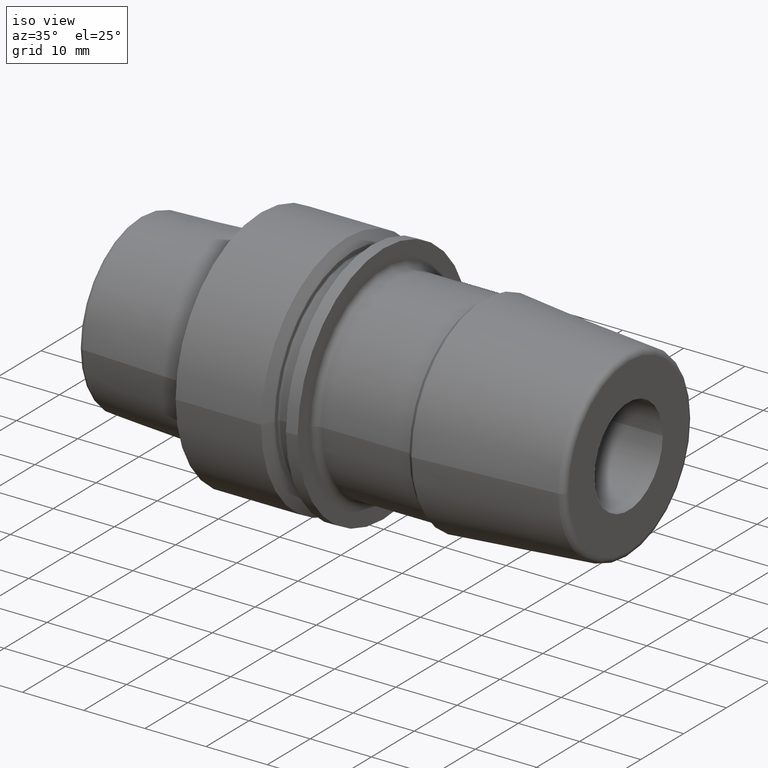
[diagram: clean part render]
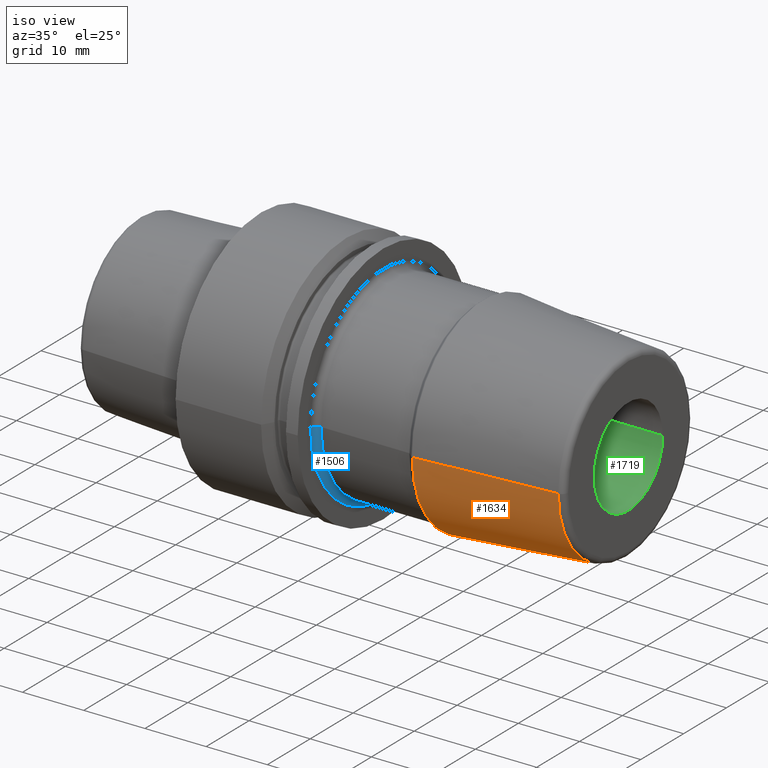
[diagram: same view with three faces highlighted in distinct colors, each labeled with its STEP entity id]
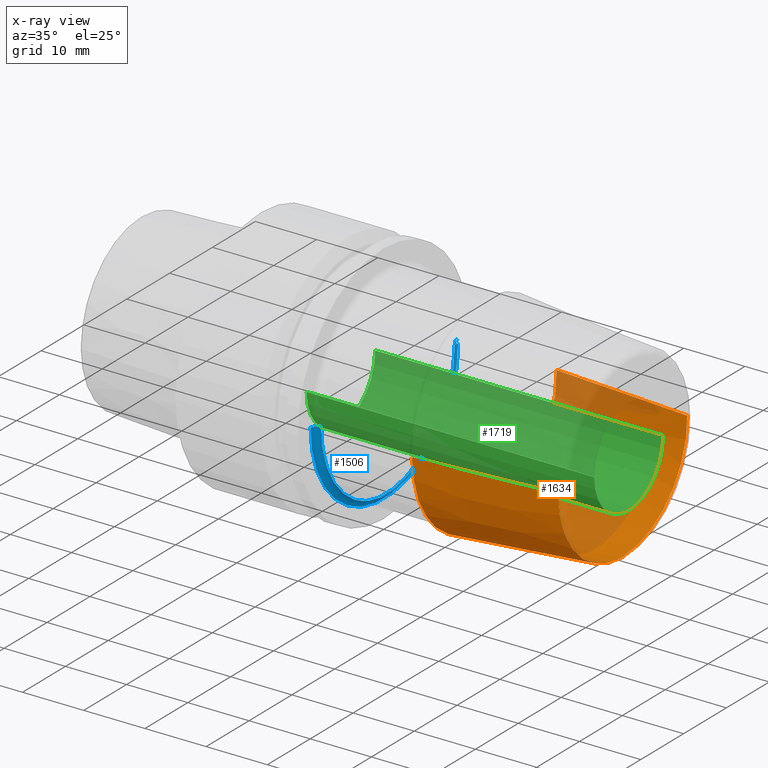
[diagram: x-ray of the same camera — body ghosted, the three highlighted faces saturated]
A machine part, iso view with three faces highlighted in distinct colors.
The next image is the same camera in x-ray (body ghosted, the three faces saturated) — at least one of them is partly hidden behind the body in this view.
Their STEP definitions:

[orange] entity #1634 — the highlighted conical surface has half-angle 4.5 deg.
#542=CARTESIAN_POINT('',(5.907845909573E1,0.E0,0.E0));
#543=DIRECTION('',(-1.E0,0.E0,0.E0));
#544=DIRECTION('',(0.E0,1.E0,0.E0));
#545=AXIS2_PLACEMENT_3D('',#542,#543,#544);
#547=DIRECTION('',(-9.969173337331E-1,7.845909572785E-2,3.844125829266E-13));
#548=VECTOR('',#547,2.269642981535E1);
#549=CARTESIAN_POINT('',(5.907845909573E1,1.507252684207E1,
-6.649541496130E-13));
#550=LINE('',#549,#548);
#551=CARTESIAN_POINT('',(3.645199479895E1,0.E0,0.E0));
#552=DIRECTION('',(-1.E0,0.E0,0.E0));
#553=DIRECTION('',(0.E0,1.E0,0.E0));
#554=AXIS2_PLACEMENT_3D('',#551,#552,#553);
#556=DIRECTION('',(-9.969173337331E-1,-7.845909572785E-2,-3.844076476141E-13));
#557=VECTOR('',#556,2.269642981535E1);
#558=CARTESIAN_POINT('',(5.907845909573E1,-1.507252684207E1,
6.644926865692E-13));
#559=LINE('',#558,#557);
#744=CARTESIAN_POINT('',(5.907845909573E1,1.507252684207E1,0.E0));
#745=CARTESIAN_POINT('',(5.907845909573E1,-1.507252684207E1,0.E0));
#746=VERTEX_POINT('',#744);
#747=VERTEX_POINT('',#745);
#752=CARTESIAN_POINT('',(3.645199479895E1,1.685326820164E1,8.059839058917E-12));
#753=VERTEX_POINT('',#752);
#754=CARTESIAN_POINT('',(3.645199479895E1,-1.685326820164E1,
-8.060188507987E-12));
#755=VERTEX_POINT('',#754);
#1620=CARTESIAN_POINT('',(4.776522694734E1,0.E0,0.E0));
#1621=DIRECTION('',(-1.E0,0.E0,0.E0));
#1622=DIRECTION('',(0.E0,1.E0,0.E0));
#1623=AXIS2_PLACEMENT_3D('',#1620,#1621,#1622);
#1624=CONICAL_SURFACE('',#1623,1.596289752186E1,4.5E0);
#1626=ORIENTED_EDGE('',*,*,#1625,.F.);
#1628=ORIENTED_EDGE('',*,*,#1627,.T.);
#1629=ORIENTED_EDGE('',*,*,#1612,.T.);
#1631=ORIENTED_EDGE('',*,*,#1630,.F.);
#1632=EDGE_LOOP('',(#1626,#1628,#1629,#1631));
#1633=FACE_OUTER_BOUND('',#1632,.F.);
#1634=ADVANCED_FACE('',(#1633),#1624,.T.);
#546=CIRCLE('',#545,1.507252684207E1);
#555=CIRCLE('',#554,1.685326820164E1);
#1612=EDGE_CURVE('',#753,#755,#555,.T.);
#1625=EDGE_CURVE('',#746,#747,#546,.T.);
#1627=EDGE_CURVE('',#746,#753,#550,.T.);
#1630=EDGE_CURVE('',#747,#755,#559,.T.);

[blue] entity #1506 — the highlighted toroidal blend (fillet) surface has major radius 17 mm and minor (blend) radius 1 mm.
#464=CARTESIAN_POINT('',(1.995E1,0.E0,0.E0));
#465=DIRECTION('',(1.E0,0.E0,0.E0));
#466=DIRECTION('',(0.E0,-1.E0,0.E0));
#467=AXIS2_PLACEMENT_3D('',#464,#465,#466);
#474=CARTESIAN_POINT('',(2.095E1,-1.7E1,0.E0));
#475=DIRECTION('',(0.E0,0.E0,-1.E0));
#476=DIRECTION('',(-1.E0,0.E0,0.E0));
#477=AXIS2_PLACEMENT_3D('',#474,#475,#476);
#479=CARTESIAN_POINT('',(2.095E1,1.7E1,-1.015854067532E-14));
#480=DIRECTION('',(0.E0,0.E0,1.E0));
#481=DIRECTION('',(-1.E0,0.E0,0.E0));
#482=AXIS2_PLACEMENT_3D('',#479,#480,#481);
#494=CARTESIAN_POINT('',(2.095E1,0.E0,0.E0));
#495=DIRECTION('',(1.E0,0.E0,0.E0));
#496=DIRECTION('',(0.E0,-1.E0,0.E0));
#497=AXIS2_PLACEMENT_3D('',#494,#495,#496);
#764=CARTESIAN_POINT('',(1.995E1,-1.7E1,0.E0));
#765=CARTESIAN_POINT('',(1.995E1,1.7E1,0.E0));
#766=VERTEX_POINT('',#764);
#767=VERTEX_POINT('',#765);
#768=CARTESIAN_POINT('',(2.095E1,-1.6E1,0.E0));
#769=CARTESIAN_POINT('',(2.095E1,1.6E1,0.E0));
#770=VERTEX_POINT('',#768);
#771=VERTEX_POINT('',#769);
#1492=CARTESIAN_POINT('',(2.095E1,0.E0,0.E0));
#1493=DIRECTION('',(1.E0,0.E0,0.E0));
#1494=DIRECTION('',(0.E0,-9.999884548084E-1,4.805231507475E-3));
#1495=AXIS2_PLACEMENT_3D('',#1492,#1493,#1494);
#1496=TOROIDAL_SURFACE('',#1495,1.7E1,1.E0);
#1497=ORIENTED_EDGE('',*,*,#1485,.F.);
#1499=ORIENTED_EDGE('',*,*,#1498,.T.);
#1501=ORIENTED_EDGE('',*,*,#1500,.T.);
#1503=ORIENTED_EDGE('',*,*,#1502,.F.);
#1504=EDGE_LOOP('',(#1497,#1499,#1501,#1503));
#1505=FACE_OUTER_BOUND('',#1504,.F.);
#1506=ADVANCED_FACE('',(#1505),#1496,.F.);
#468=CIRCLE('',#467,1.7E1);
#478=CIRCLE('',#477,1.E0);
#483=CIRCLE('',#482,1.E0);
#498=CIRCLE('',#497,1.6E1);
#1485=EDGE_CURVE('',#766,#767,#468,.T.);
#1498=EDGE_CURVE('',#766,#770,#478,.T.);
#1500=EDGE_CURVE('',#770,#771,#498,.T.);
#1502=EDGE_CURVE('',#767,#771,#483,.T.);

[green] entity #1719 — the highlighted cylindrical surface (partial cylindrical patch) has radius 8 mm, axis along (-1, 0, 0).
#595=CARTESIAN_POINT('',(6.E1,0.E0,0.E0));
#596=DIRECTION('',(-1.E0,0.E0,0.E0));
#597=DIRECTION('',(0.E0,1.E0,0.E0));
#598=AXIS2_PLACEMENT_3D('',#595,#596,#597);
#600=DIRECTION('',(-1.E0,0.E0,0.E0));
#601=VECTOR('',#600,4.7E1);
#602=CARTESIAN_POINT('',(6.E1,-8.E0,0.E0));
#603=LINE('',#602,#601);
#604=DIRECTION('',(-1.E0,0.E0,0.E0));
#605=VECTOR('',#604,4.7E1);
#606=CARTESIAN_POINT('',(6.E1,8.E0,0.E0));
#607=LINE('',#606,#605);
#613=CARTESIAN_POINT('',(1.3E1,0.E0,0.E0));
#614=DIRECTION('',(-1.E0,0.E0,0.E0));
#615=DIRECTION('',(0.E0,1.E0,0.E0));
#616=AXIS2_PLACEMENT_3D('',#613,#614,#615);
#756=CARTESIAN_POINT('',(1.3E1,-8.E0,0.E0));
#757=CARTESIAN_POINT('',(1.3E1,8.E0,0.E0));
#758=VERTEX_POINT('',#756);
#759=VERTEX_POINT('',#757);
#760=CARTESIAN_POINT('',(6.E1,-8.E0,0.E0));
#761=CARTESIAN_POINT('',(6.E1,8.E0,0.E0));
#762=VERTEX_POINT('',#760);
#763=VERTEX_POINT('',#761);
#1707=CARTESIAN_POINT('',(6.E1,0.E0,0.E0));
#1708=DIRECTION('',(-1.E0,0.E0,0.E0));
#1709=DIRECTION('',(0.E0,-1.E0,0.E0));
#1710=AXIS2_PLACEMENT_3D('',#1707,#1708,#1709);
#1711=CYLINDRICAL_SURFACE('',#1710,8.E0);
#1712=ORIENTED_EDGE('',*,*,#1687,.T.);
#1713=ORIENTED_EDGE('',*,*,#1702,.T.);
#1715=ORIENTED_EDGE('',*,*,#1714,.F.);
#1716=ORIENTED_EDGE('',*,*,#1698,.F.);
#1717=EDGE_LOOP('',(#1712,#1713,#1715,#1716));
#1718=FACE_OUTER_BOUND('',#1717,.F.);
#1719=ADVANCED_FACE('',(#1718),#1711,.F.);
#599=CIRCLE('',#598,8.E0);
#617=CIRCLE('',#616,8.E0);
#1687=EDGE_CURVE('',#763,#762,#599,.T.);
#1698=EDGE_CURVE('',#763,#759,#607,.T.);
#1702=EDGE_CURVE('',#762,#758,#603,.T.);
#1714=EDGE_CURVE('',#759,#758,#617,.T.);